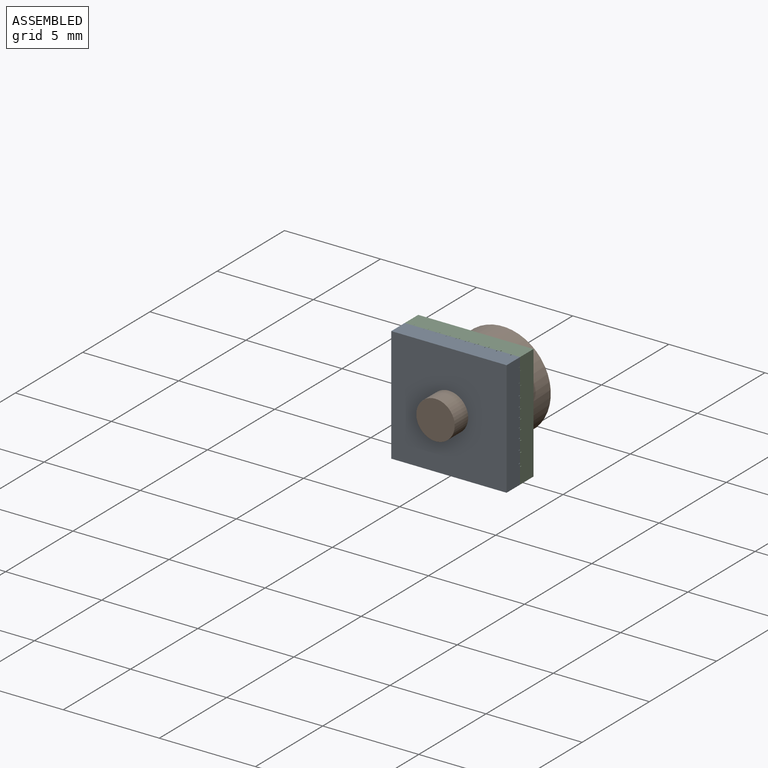
[diagram: assembled view]
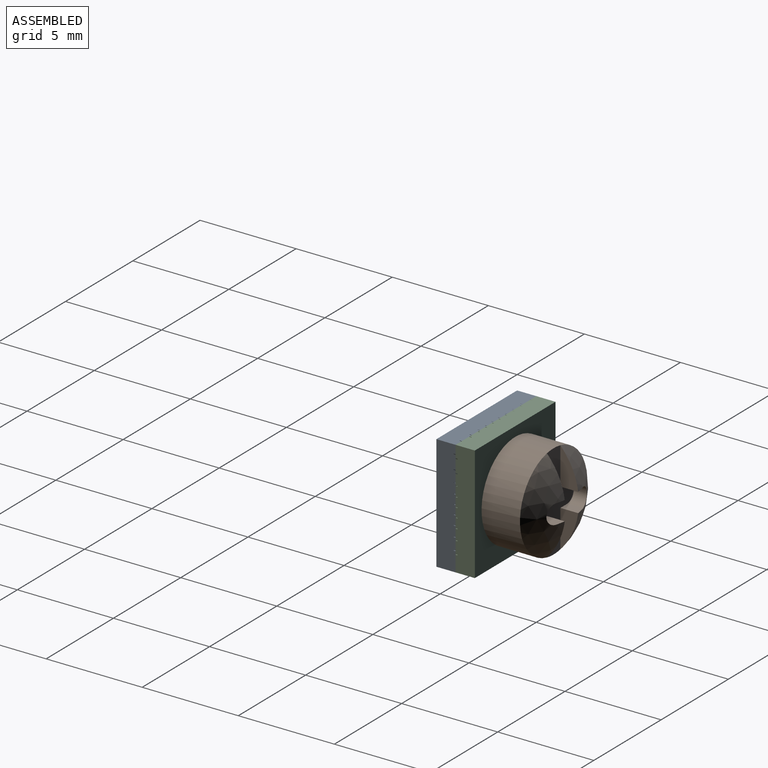
[diagram: assembled view, second angle]
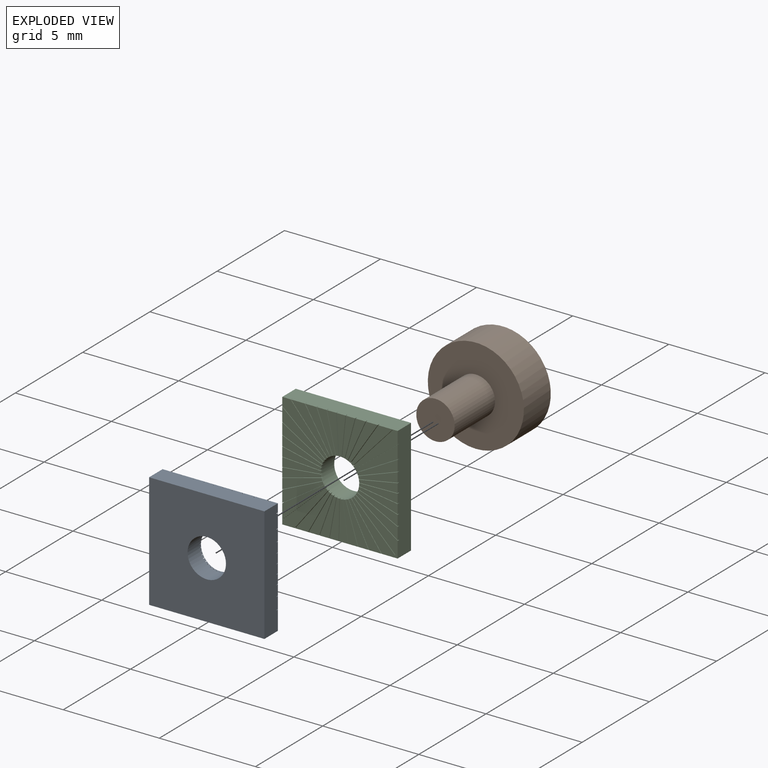
[diagram: exploded view]
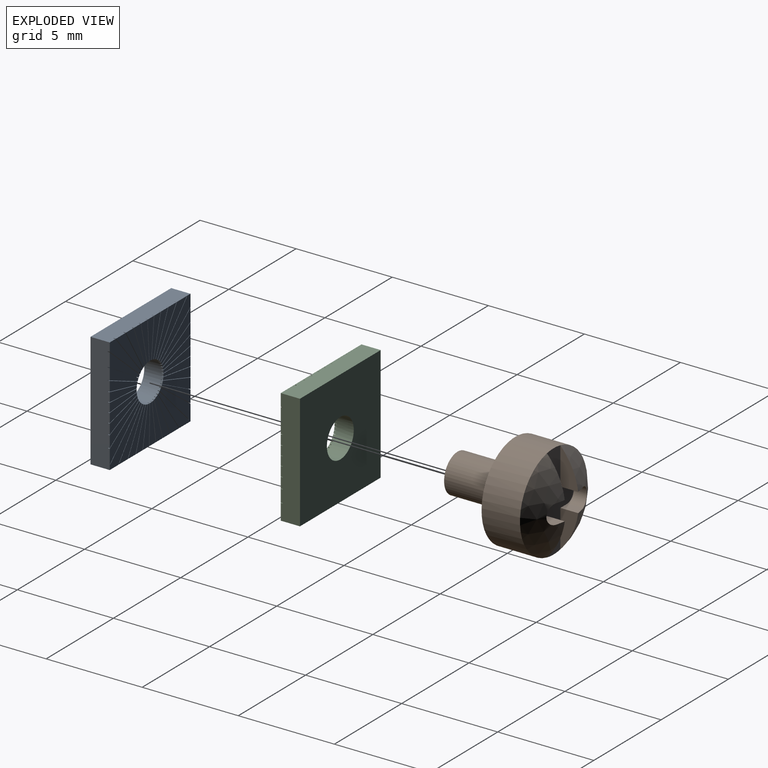
[diagram: exploded view, second angle]
ASSEMBLY  parts=3 mates=5
PART A: 162 faces, bbox 6x6x1 mm
  f0: cylinder r=1mm len=2mm, axis (0,0,1), area 6.2mm2, adj f3,f8,f9,f10,f11,f12,f13,f14
  f1: cylinder r=0.01mm len=0.1mm, axis (0,0,1), area 0mm2, adj f101,f103,f104,f107
  f2: cylinder r=0.01mm len=0.1mm, axis (0,0,1), area 0mm2, adj f141,f144,f145,f148
  f3: plane 6x6mm, normal (0,0,-1), area 32.9mm2, adj f0,f4,f5,f6,f7
  f4: plane 6x1mm, normal (0,1,0), area 6mm2, adj f3,f5,f7,f8,f10,f11,f14,f15
  f5: plane 6x1mm, normal (-1,0,0), area 6mm2, adj f3,f4,f6,f9,f12,f13,f15,f16
  f6: plane 6x1mm, normal (0,-1,0), area 6mm2, adj f3,f5,f7,f62,f64,f69,f72,f74
  f7: plane 6x1mm, normal (1,0,0), area 6mm2, adj f3,f4,f6,f101,f105,f108,f110,f112
  f8: plane 2.25x1.93mm, normal (0,0,1), area 0.1mm2, adj f0,f4,f10,f11
  f9: plane 2x0.46mm, normal (0,0,1), area 0.6mm2, adj f0,f5,f12,f13
  f10: plane 2.23x1.9mm, normal (-0.76,-0.65,0), area 0.3mm2, adj f0,f4,f8,f14
  f11: plane 2.25x1.91mm, normal (0.76,0.65,0), area 0.3mm2, adj f0,f4,f8,f15
  f12: plane 2x0.21mm, normal (0.1,-0.99,0), area 0.2mm2, adj f0,f5,f9,f16
  f13: plane 2x0.12mm, normal (0.06,1,0), area 0.2mm2, adj f0,f5,f9,f17
  f14: plane 2.23x2.02mm, normal (0,0,1), area 1mm2, adj f0,f4,f10,f18
  f15: plane 2.35x2.34mm, normal (0,0,1), area 1.2mm2, adj f0,f4,f5,f11,f19
  f16: plane 2.01x0.23mm, normal (0,0,1), area 0mm2, adj f0,f5,f12,f20
  f17: plane 2x0.14mm, normal (0,0,1), area 0mm2, adj f0,f5,f13,f21
  f18: plane 2.15x1.3mm, normal (0.86,0.52,0), area 0.3mm2, adj f0,f4,f14,f22
  f19: plane 2.24x1.9mm, normal (-0.65,-0.76,0), area 0.3mm2, adj f0,f5,f15,f23
  f20: plane 2.01x0.21mm, normal (-0.1,0.99,0), area 0.2mm2, adj f0,f5,f16,f24
  f21: plane 2x0.12mm, normal (-0.06,-1,0), area 0.2mm2, adj f0,f5,f17,f25
  f22: plane 2.15x1.32mm, normal (0,0,1), area 0.1mm2, adj f0,f4,f18,f26
  f23: plane 2.24x1.92mm, normal (0,0,1), area 0.1mm2, adj f0,f5,f19,f27
  f24: plane 2.03x0.69mm, normal (0,0,1), area 0.6mm2, adj f0,f5,f20,f28
  f25: plane 2.02x0.59mm, normal (0,0,1), area 0.6mm2, adj f0,f5,f21,f29
  f26: plane 2.14x1.3mm, normal (-0.86,-0.52,0), area 0.3mm2, adj f0,f4,f22,f30
  f27: plane 2.23x1.89mm, normal (0.65,0.76,0), area 0.3mm2, adj f0,f5,f23,f31
  f28: plane 2.03x0.55mm, normal (0.26,-0.97,0), area 0.2mm2, adj f0,f5,f24,f32
  f29: plane 2.02x0.45mm, normal (0.22,0.98,0), area 0.2mm2, adj f0,f5,f25,f33
  f30: plane 2.14x1.42mm, normal (0,0,1), area 0.8mm2, adj f0,f4,f26,f34
  f31: plane 2.23x2.01mm, normal (0,0,1), area 1mm2, adj f0,f5,f27,f35
  f32: plane 2.04x0.57mm, normal (0,0,1), area 0mm2, adj f0,f5,f28,f36
  f33: plane 2.03x0.47mm, normal (0,0,1), area 0mm2, adj f0,f5,f29,f37
  f34: plane 2.08x0.84mm, normal (0.93,0.37,0), area 0.2mm2, adj f0,f4,f30,f38
  f35: plane 2.15x1.3mm, normal (-0.52,-0.86,0), area 0.3mm2, adj f0,f5,f31,f39
  f36: plane 2.04x0.55mm, normal (-0.26,0.97,0), area 0.2mm2, adj f0,f5,f32,f40
  f37: plane 2.03x0.45mm, normal (-0.22,-0.98,0), area 0.2mm2, adj f0,f5,f33,f41
  f38: plane 2.08x0.86mm, normal (0,0,1), area 0mm2, adj f0,f4,f34,f42
  f39: plane 2.15x1.31mm, normal (0,0,1), area 0.1mm2, adj f0,f5,f35,f43
  f40: plane 2.08x1.07mm, normal (0,0,1), area 0.7mm2, adj f0,f5,f36,f44
  f41: plane 2.07x0.96mm, normal (0,0,1), area 0.7mm2, adj f0,f5,f37,f45
  f42: plane 2.07x0.84mm, normal (-0.93,-0.37,0), area 0.2mm2, adj f0,f4,f38,f46
  f43: plane 2.14x1.29mm, normal (0.52,0.86,0), area 0.2mm2, adj f0,f5,f39,f47
  f44: plane 2.08x0.94mm, normal (0.41,-0.91,0), area 0.2mm2, adj f0,f5,f40,f48
  f45: plane 2.07x0.83mm, normal (0.37,0.93,0), area 0.2mm2, adj f0,f5,f41,f49
  f46: plane 2.07x0.97mm, normal (0,0,1), area 0.7mm2, adj f0,f4,f42,f50
  f47: plane 2.14x1.42mm, normal (0,0,1), area 0.8mm2, adj f0,f5,f43,f51
  f48: plane 2.09x0.96mm, normal (0,0,1), area 0mm2, adj f0,f5,f44,f52
  f49: plane 2.08x0.85mm, normal (0,0,1), area 0mm2, adj f0,f5,f45,f51
  f50: plane 2.03x0.46mm, normal (0.98,0.22,0), area 0.2mm2, adj f0,f4,f46,f53
  f51: plane 2.08x0.83mm, normal (-0.37,-0.93,0), area 0.2mm2, adj f0,f5,f47,f49
  f52: plane 2.09x0.95mm, normal (-0.41,0.91,0), area 0.2mm2, adj f0,f5,f48,f54
  f53: plane 2.03x0.48mm, normal (0,0,1), area 0mm2, adj f0,f4,f50,f55
  f54: plane 2.16x1.56mm, normal (0,0,1), area 0.8mm2, adj f0,f5,f52,f56
  f55: plane 2.02x0.46mm, normal (-0.98,-0.22,0), area 0.2mm2, adj f0,f4,f53,f57
  f56: plane 2.16x1.43mm, normal (0.55,-0.83,0), area 0.3mm2, adj f0,f5,f54,f58
  f57: plane 2.02x0.6mm, normal (0,0,1), area 0.6mm2, adj f0,f4,f55,f59
  f58: plane 2.17x1.46mm, normal (0,0,1), area 0.1mm2, adj f0,f5,f56,f60
  f59: plane 2x0.12mm, normal (1,0.06,0), area 0.2mm2, adj f0,f4,f57,f61
  f60: plane 2.17x1.44mm, normal (-0.55,0.83,0), area 0.3mm2, adj f0,f5,f58,f62
  f61: plane 2x0.14mm, normal (0,0,1), area 0mm2, adj f0,f4,f59,f63
  f62: plane 2.44x2.38mm, normal (0,0,1), area 2.2mm2, adj f0,f5,f6,f60,f64,f65,f66,f67
  f63: plane 2x0.12mm, normal (-1,-0.06,0), area 0.2mm2, adj f0,f4,f61,f68
  f64: plane 2.22x1.73mm, normal (0.79,-0.62,0), area 0.3mm2, adj f0,f6,f62,f69
  f65: plane 2.23x2.06mm, normal (-0.68,0.73,0), area 0.3mm2, adj f0,f62,f66,f70
  f66: cylinder r=0.01mm len=0.1mm, axis (0,0,1), area 0mm2, adj f62,f65,f67,f70
  f67: plane 2.23x2.06mm, normal (0.68,-0.73,0), area 0.3mm2, adj f0,f62,f66,f70
  f68: plane 2x0.46mm, normal (0,0,1), area 0.6mm2, adj f0,f4,f63,f71
  f69: plane 2.22x1.75mm, normal (0,0,1), area 0.1mm2, adj f0,f6,f64,f72
  f70: plane 2.25x2.08mm, normal (0,0,1), area 0.1mm2, adj f0,f65,f66,f67
  f71: plane 2x0.2mm, normal (1,-0.1,0), area 0.2mm2, adj f0,f4,f68,f73
  f72: plane 2.21x1.72mm, normal (-0.79,0.62,0), area 0.3mm2, adj f0,f6,f69,f74
  f73: plane 2.01x0.22mm, normal (0,0,1), area 0mm2, adj f0,f4,f71,f75
  f74: plane 2.21x1.84mm, normal (0,0,1), area 0.9mm2, adj f0,f6,f72,f76
  f75: plane 2.01x0.2mm, normal (-1,0.1,0), area 0.2mm2, adj f0,f4,f73,f77
  f76: plane 2.13x1.17mm, normal (0.88,-0.48,0), area 0.2mm2, adj f0,f6,f74,f78
  f77: plane 2.03x0.68mm, normal (0,0,1), area 0.6mm2, adj f0,f4,f75,f79
  f78: plane 2.13x1.19mm, normal (0,0,1), area 0mm2, adj f0,f6,f76,f80
  f79: plane 2.03x0.54mm, normal (0.97,-0.26,0), area 0.2mm2, adj f0,f4,f77,f81
  f80: plane 2.12x1.16mm, normal (-0.88,0.48,0), area 0.2mm2, adj f0,f6,f78,f82
  f81: plane 2.04x0.56mm, normal (0,0,1), area 0mm2, adj f0,f4,f79,f83
  f82: plane 2.12x1.29mm, normal (0,0,1), area 0.7mm2, adj f0,f6,f80,f84
  f83: plane 2.04x0.54mm, normal (-0.97,0.26,0), area 0.2mm2, adj f0,f4,f81,f85
  f84: plane 2.06x0.73mm, normal (0.94,-0.33,0), area 0.2mm2, adj f0,f6,f82,f86
  f85: plane 2.08x1.07mm, normal (0,0,1), area 0.7mm2, adj f0,f4,f83,f87
  f86: plane 2.06x0.75mm, normal (0,0,1), area 0mm2, adj f0,f6,f84,f88
  f87: plane 2.08x0.93mm, normal (0.91,-0.41,0), area 0.2mm2, adj f0,f4,f85,f89
  f88: plane 2.05x0.73mm, normal (-0.94,0.33,0), area 0.2mm2, adj f0,f6,f86,f90
  f89: plane 2.09x0.96mm, normal (0,0,1), area 0mm2, adj f0,f4,f87,f91
  f90: plane 2.05x0.87mm, normal (0,0,1), area 0.7mm2, adj f0,f6,f88,f92
  f91: plane 2.09x0.94mm, normal (-0.91,0.41,0), area 0.2mm2, adj f0,f4,f89,f93
  f92: plane 2.02x0.37mm, normal (0.98,-0.18,0), area 0.2mm2, adj f0,f6,f90,f94
  f93: plane 2.16x1.55mm, normal (0,0,1), area 0.8mm2, adj f0,f4,f91,f95
  f94: plane 2.02x0.39mm, normal (0,0,1), area 0mm2, adj f0,f6,f92,f96
  f95: plane 2.16x1.42mm, normal (0.83,-0.55,0), area 0.3mm2, adj f0,f4,f93,f97
  f96: plane 2.01x0.37mm, normal (-0.98,0.18,0), area 0.2mm2, adj f0,f6,f94,f98
  f97: plane 2.17x1.45mm, normal (0,0,1), area 0.1mm2, adj f0,f4,f95,f99
  f98: plane 2.01x0.51mm, normal (0,0,1), area 0.6mm2, adj f0,f6,f96,f100
  f99: plane 2.17x1.43mm, normal (-0.83,0.55,0), area 0.3mm2, adj f0,f4,f97,f101
  f100: plane 2x0.1mm, normal (1,-0.02,0), area 0.2mm2, adj f0,f6,f98,f102
  f101: plane 2.44x2.37mm, normal (0,0,1), area 2.2mm2, adj f0,f1,f4,f7,f99,f103,f104,f105
  f102: plane 2x0.06mm, normal (0,0,1), area 0mm2, adj f0,f6,f100,f106
  f103: plane 2.24x2.06mm, normal (0.74,-0.68,0), area 0.3mm2, adj f0,f1,f101,f107
  f104: plane 2.24x2.06mm, normal (-0.74,0.68,0), area 0.3mm2, adj f0,f1,f101,f107
  f105: plane 2.22x1.74mm, normal (0.62,-0.79,0), area 0.3mm2, adj f0,f7,f101,f108
  f106: plane 2x0.1mm, normal (-1,0.02,0), area 0.2mm2, adj f0,f6,f102,f109
  f107: plane 2.25x2.08mm, normal (0,0,1), area 0.1mm2, adj f0,f1,f103,f104
  f108: plane 2.22x1.76mm, normal (0,0,1), area 0.1mm2, adj f0,f7,f105,f110
  f109: plane 2.01x0.47mm, normal (0,0,1), area 0.6mm2, adj f0,f6,f106,f111
  f110: plane 2.21x1.73mm, normal (-0.62,0.79,0), area 0.3mm2, adj f0,f7,f108,f112
  f111: plane 2.01x0.29mm, normal (0.99,0.14,0), area 0.2mm2, adj f0,f6,f109,f113
  f112: plane 2.21x1.85mm, normal (0,0,1), area 0.9mm2, adj f0,f7,f110,f114
  f113: plane 2.01x0.31mm, normal (0,0,1), area 0mm2, adj f0,f6,f111,f115
  f114: plane 2.13x1.18mm, normal (0.48,-0.88,0), area 0.2mm2, adj f0,f7,f112,f116
  f115: plane 2.01x0.29mm, normal (-0.99,-0.14,0), area 0.2mm2, adj f0,f6,f113,f117
  f116: plane 2.13x1.19mm, normal (0,0,1), area 0mm2, adj f0,f7,f114,f118
  f117: plane 2.04x0.78mm, normal (0,0,1), area 0.6mm2, adj f0,f6,f115,f119
  f118: plane 2.12x1.17mm, normal (-0.48,0.88,0), area 0.2mm2, adj f0,f7,f116,f120
  f119: plane 2.04x0.64mm, normal (0.95,0.3,0), area 0.2mm2, adj f0,f6,f117,f121
  f120: plane 2.12x1.3mm, normal (0,0,1), area 0.7mm2, adj f0,f7,f118,f122
  f121: plane 2.05x0.66mm, normal (0,0,1), area 0mm2, adj f0,f6,f119,f123
  f122: plane 2.06x0.74mm, normal (0.34,-0.94,0), area 0.2mm2, adj f0,f7,f120,f124
  f123: plane 2.05x0.64mm, normal (-0.95,-0.3,0), area 0.2mm2, adj f0,f6,f121,f125
  f124: plane 2.06x0.76mm, normal (0,0,1), area 0mm2, adj f0,f7,f122,f126
  f125: plane 2.1x1.18mm, normal (0,0,1), area 0.7mm2, adj f0,f6,f123,f127
  f126: plane 2.06x0.74mm, normal (-0.34,0.94,0), area 0.2mm2, adj f0,f7,f124,f128
  f127: plane 2.1x1.05mm, normal (0.89,0.45,0), area 0.2mm2, adj f0,f6,f125,f129
  f128: plane 2.06x0.87mm, normal (0,0,1), area 0.7mm2, adj f0,f7,f126,f130
  f129: plane 2.11x1.08mm, normal (0,0,1), area 0mm2, adj f0,f6,f127,f131
  f130: plane 2.02x0.37mm, normal (0.18,-0.98,0), area 0.2mm2, adj f0,f7,f128,f132
  f131: plane 2.11x1.06mm, normal (-0.89,-0.45,0), area 0.2mm2, adj f0,f6,f129,f133
  f132: plane 2.02x0.39mm, normal (0,0,1), area 0mm2, adj f0,f7,f130,f134
  f133: plane 2.18x1.7mm, normal (0,0,1), area 0.9mm2, adj f0,f6,f131,f135
  f134: plane 2.02x0.37mm, normal (-0.18,0.98,0), area 0.2mm2, adj f0,f7,f132,f136
  f135: plane 2.18x1.58mm, normal (0.81,0.59,0), area 0.3mm2, adj f0,f6,f133,f137
  f136: plane 2.02x0.51mm, normal (0,0,1), area 0.6mm2, adj f0,f7,f134,f138
  f137: plane 2.2x1.6mm, normal (0,0,1), area 0.1mm2, adj f0,f6,f135,f139
  f138: plane 2x0.1mm, normal (0.02,-1,0), area 0.2mm2, adj f0,f7,f136,f140
  f139: plane 2.2x1.59mm, normal (-0.81,-0.59,0), area 0.3mm2, adj f0,f6,f137,f141
  f140: plane 2x0.06mm, normal (0,0,1), area 0mm2, adj f0,f7,f138,f142
  f141: plane 2.41x2.41mm, normal (0,0,1), area 2.2mm2, adj f0,f2,f6,f7,f139,f143,f144,f145
  f142: plane 2x0.1mm, normal (-0.02,1,0), area 0.2mm2, adj f0,f7,f140,f146
  f143: plane 2.19x1.58mm, normal (0.58,0.81,0), area 0.3mm2, adj f0,f7,f141,f147
  f144: plane 2.15x2.15mm, normal (-0.71,-0.71,0), area 0.3mm2, adj f0,f2,f141,f148
  f145: plane 2.15x2.15mm, normal (0.71,0.71,0), area 0.3mm2, adj f0,f2,f141,f148
  f146: plane 2.01x0.47mm, normal (0,0,1), area 0.6mm2, adj f0,f7,f142,f149
  f147: plane 2.19x1.59mm, normal (0,0,1), area 0.1mm2, adj f0,f7,f143,f150
  f148: plane 2.17x2.16mm, normal (0,0,1), area 0.1mm2, adj f0,f2,f144,f145
  f149: plane 2.01x0.28mm, normal (-0.14,-0.99,0), area 0.2mm2, adj f0,f7,f146,f151
  f150: plane 2.18x1.57mm, normal (-0.58,-0.81,0), area 0.3mm2, adj f0,f7,f147,f152
  f151: plane 2.01x0.3mm, normal (0,0,1), area 0mm2, adj f0,f7,f149,f153
  f152: plane 2.18x1.69mm, normal (0,0,1), area 0.9mm2, adj f0,f7,f150,f154
  f153: plane 2.01x0.28mm, normal (0.14,0.99,0), area 0.2mm2, adj f0,f7,f151,f155
  f154: plane 2.11x1.05mm, normal (0.45,0.9,0), area 0.2mm2, adj f0,f7,f152,f156
  f155: plane 2.04x0.77mm, normal (0,0,1), area 0.6mm2, adj f0,f7,f153,f157
  f156: plane 2.11x1.07mm, normal (0,0,1), area 0mm2, adj f0,f7,f154,f158
  f157: plane 2.04x0.63mm, normal (-0.3,-0.96,0), area 0.2mm2, adj f0,f7,f155,f159
  f158: plane 2.1x1.05mm, normal (-0.45,-0.9,0), area 0.2mm2, adj f0,f7,f156,f160
  f159: plane 2.05x0.65mm, normal (0,0,1), area 0mm2, adj f0,f7,f157,f161
  f160: plane 2.1x1.18mm, normal (0,0,1), area 0.7mm2, adj f0,f7,f158,f161
  f161: plane 2.05x0.64mm, normal (0.3,0.96,0), area 0.2mm2, adj f0,f7,f159,f160
PART B: 17 faces, bbox 5.1x5.1x6 mm
  f0: cylinder r=2.5mm len=5mm, axis (0,0,1), area 31.4mm2, adj f2,f3,f4,f16
  f1: cylinder r=1mm len=3mm, axis (0,0,1), area 18.8mm2, adj f2,f5
  f2: plane 5x5mm, normal (0,0,-1), area 16.5mm2, adj f0,f1
  f3: sphere r=3.62mm, area 7.6mm2, adj f0,f6,f7,f8,f9,f10
  f4: sphere r=3.62mm, area 7.6mm2, adj f0,f11,f12,f13,f14,f15
  f5: plane 2x2mm, normal (0,0,-1), area 3.1mm2, adj f1
  f6: plane 2.02x1mm, normal (0,-1,0), area 1.1mm2, adj f3,f7,f16
  f7: plane 0.93x0.5mm, normal (-1,0,0), area 0.4mm2, adj f3,f6,f8,f16
  f8: cylinder r=0.5mm len=1mm, axis (0,0,-1), area 1.3mm2, adj f3,f7,f9,f16
  f9: plane 0.93x0.5mm, normal (1,0,0), area 0.4mm2, adj f3,f8,f10,f16
  f10: plane 2.02x1mm, normal (0,-1,0), area 1.1mm2, adj f3,f9,f16
  f11: plane 2.02x1mm, normal (0,1,0), area 1.1mm2, adj f4,f12,f16
  f12: plane 0.93x0.5mm, normal (1,0,0), area 0.4mm2, adj f4,f11,f13,f16
  f13: cylinder r=0.5mm len=1mm, axis (0,0,-1), area 1.3mm2, adj f4,f12,f14,f16
  f14: plane 0.93x0.5mm, normal (-1,0,0), area 0.4mm2, adj f4,f13,f15,f16
  f15: plane 2.02x1mm, normal (0,1,0), area 1.1mm2, adj f4,f14,f16
  f16: plane 5x3mm, normal (0,0,1), area 6.8mm2, adj f0,f6,f7,f8,f9,f10,f11,f12
PART C: same geometry as A
PLACE A rot(axis=(0,0.71,0.71),180deg) t=(55.12,43.49,-24.62)mm
PLACE B rot(axis=(-0.58,0.58,0.58),120deg) t=(55.12,47.49,-24.62)mm
PLACE C rot(axis=(1,0,0),90deg) t=(55.12,45.49,-24.62)mm
MATE cylindrical B.f0 <-> C.f0  axis (0,1,0) through (55.12,45.49,-24.62)mm
MATE planar C.f6 <-> A.f6  axis (0,0,-1) through (55.12,44.99,-27.62)mm
MATE planar C.f5 <-> A.f7  axis (-1,0,0) through (52.12,44.99,-24.62)mm
MATE planar C.f109 <-> A.f125  axis (0,-1,0) through (55.26,44.49,-26.79)mm
MATE planar B.f0 <-> C.f0  axis (0,-1,0) through (55.12,45.49,-24.62)mm
